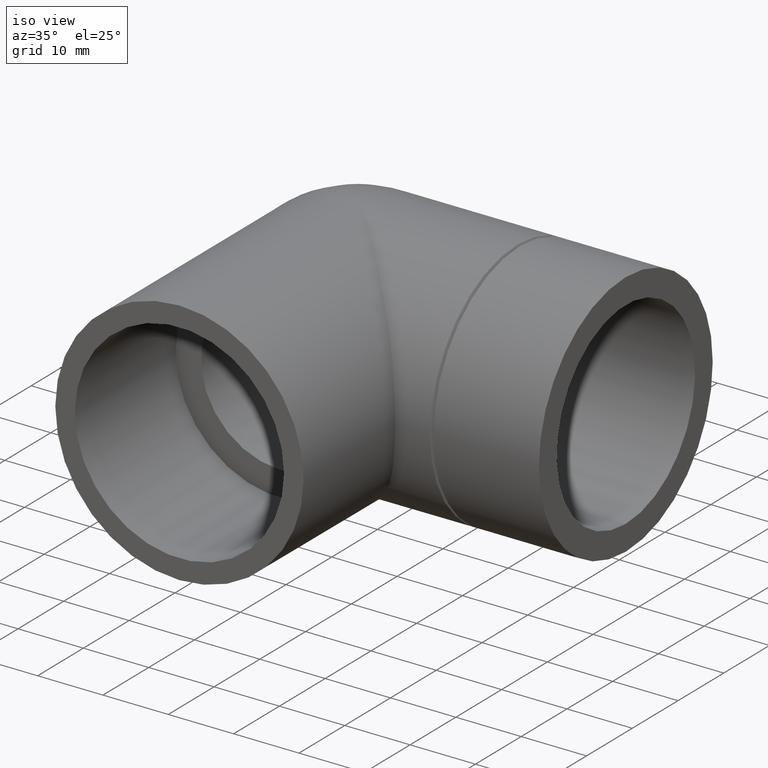
[diagram: clean part render]
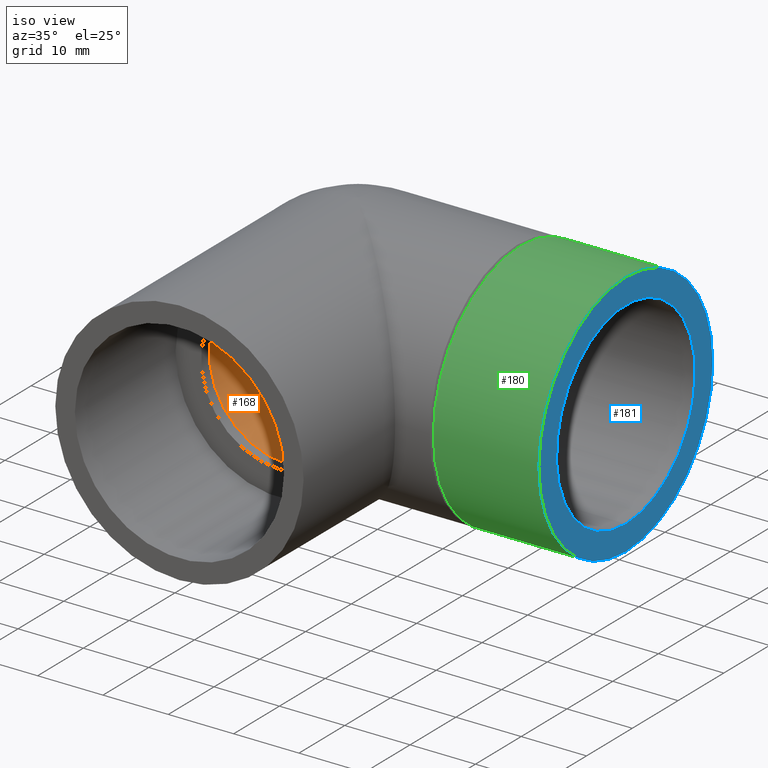
[diagram: same view with three faces highlighted in distinct colors, each labeled with its STEP entity id]
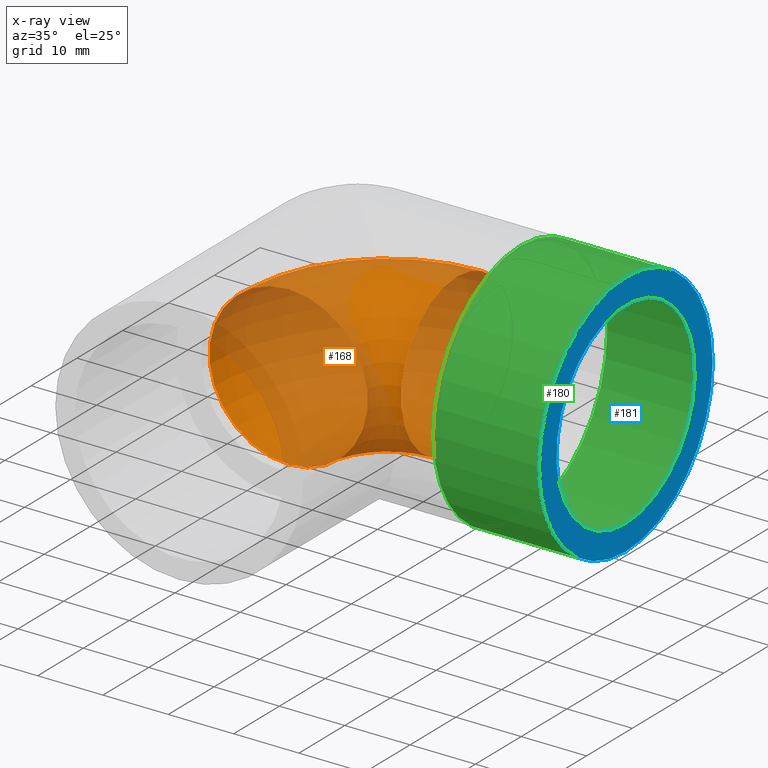
[diagram: x-ray of the same camera — body ghosted, the three highlighted faces saturated]
A machine part, iso view with three faces highlighted in distinct colors.
The next image is the same camera in x-ray (body ghosted, the three faces saturated) — at least one of them is partly hidden behind the body in this view.
Their STEP definitions:

[orange] entity #168 — the highlighted toroidal blend (fillet) surface has major radius 15.1455 mm and minor (blend) radius 12.1164 mm.
#23=TOROIDAL_SURFACE('',#187,15.1455,12.1164);
#25=FACE_BOUND('',#56,.T.);
#39=FACE_OUTER_BOUND('',#55,.T.);
#55=EDGE_LOOP('',(#130));
#56=EDGE_LOOP('',(#131));
#83=CIRCLE('',#186,12.1164);
#84=CIRCLE('',#188,12.1164);
#98=VERTEX_POINT('',#283);
#99=VERTEX_POINT('',#286);
#113=EDGE_CURVE('',#98,#98,#83,.T.);
#114=EDGE_CURVE('',#99,#99,#84,.T.);
#130=ORIENTED_EDGE('',*,*,#113,.T.);
#131=ORIENTED_EDGE('',*,*,#114,.F.);
#168=ADVANCED_FACE('',(#39,#25),#23,.F.);
#186=AXIS2_PLACEMENT_3D('',#284,#221,#222);
#187=AXIS2_PLACEMENT_3D('',#285,#223,#224);
#188=AXIS2_PLACEMENT_3D('',#287,#225,#226);
#221=DIRECTION('center_axis',(-6.12323399573677E-17,-1.,0.));
#222=DIRECTION('ref_axis',(0.,0.,1.));
#223=DIRECTION('center_axis',(0.,0.,1.));
#224=DIRECTION('ref_axis',(1.,0.,0.));
#225=DIRECTION('center_axis',(-1.,0.,0.));
#226=DIRECTION('ref_axis',(0.,0.,1.));
#283=CARTESIAN_POINT('',(-3.69695531835047E-15,-15.1455,-12.1164));
#284=CARTESIAN_POINT('Origin',(-2.21312427063158E-15,-15.1455,0.));
#285=CARTESIAN_POINT('Origin',(15.1455,-15.1455,0.));
#286=CARTESIAN_POINT('',(15.1455,1.47650926910016E-15,-12.1164));
#287=CARTESIAN_POINT('Origin',(15.1455,-7.32177861873785E-18,0.));

[blue] entity #181 — the highlighted planar face has unit normal (1, 0, 0).
#22=PLANE('',#214);
#37=FACE_BOUND('',#81,.T.);
#52=FACE_OUTER_BOUND('',#80,.T.);
#80=EDGE_LOOP('',(#158));
#81=EDGE_LOOP('',(#159));
#89=CIRCLE('',#197,15.1455);
#96=CIRCLE('',#213,19.);
#104=VERTEX_POINT('',#300);
#111=VERTEX_POINT('',#323);
#119=EDGE_CURVE('',#104,#104,#89,.T.);
#127=EDGE_CURVE('',#111,#111,#96,.T.);
#158=ORIENTED_EDGE('',*,*,#127,.T.);
#159=ORIENTED_EDGE('',*,*,#119,.T.);
#181=ADVANCED_FACE('',(#52,#37),#22,.T.);
#197=AXIS2_PLACEMENT_3D('',#301,#243,#244);
#213=AXIS2_PLACEMENT_3D('',#324,#275,#276);
#214=AXIS2_PLACEMENT_3D('',#325,#277,#278);
#243=DIRECTION('center_axis',(-1.,0.,0.));
#244=DIRECTION('ref_axis',(0.,0.,1.));
#275=DIRECTION('center_axis',(1.,0.,0.));
#276=DIRECTION('ref_axis',(0.,0.,-1.));
#277=DIRECTION('center_axis',(1.,0.,0.));
#278=DIRECTION('ref_axis',(0.,0.,-1.));
#300=CARTESIAN_POINT('',(41.,1.85478880964862E-15,-15.1455));
#301=CARTESIAN_POINT('Origin',(41.,0.,0.));
#323=CARTESIAN_POINT('',(41.,19.,0.));
#324=CARTESIAN_POINT('Origin',(41.,0.,0.));
#325=CARTESIAN_POINT('Origin',(41.,0.,0.));

[green] entity #180 — the highlighted cylindrical surface (bore or boss wall) has radius 19 mm, axis along (1, 0, 0).
#36=FACE_BOUND('',#79,.T.);
#51=FACE_OUTER_BOUND('',#78,.T.);
#78=EDGE_LOOP('',(#156));
#79=EDGE_LOOP('',(#157));
#95=CIRCLE('',#211,19.);
#96=CIRCLE('',#213,19.);
#110=VERTEX_POINT('',#320);
#111=VERTEX_POINT('',#323);
#126=EDGE_CURVE('',#110,#110,#95,.T.);
#127=EDGE_CURVE('',#111,#111,#96,.T.);
#156=ORIENTED_EDGE('',*,*,#126,.T.);
#157=ORIENTED_EDGE('',*,*,#127,.F.);
#166=CYLINDRICAL_SURFACE('',#212,19.);
#180=ADVANCED_FACE('',(#51,#36),#166,.T.);
#211=AXIS2_PLACEMENT_3D('',#321,#271,#272);
#212=AXIS2_PLACEMENT_3D('',#322,#273,#274);
#213=AXIS2_PLACEMENT_3D('',#324,#275,#276);
#271=DIRECTION('center_axis',(1.,0.,0.));
#272=DIRECTION('ref_axis',(0.,0.,-1.));
#273=DIRECTION('center_axis',(1.,0.,0.));
#274=DIRECTION('ref_axis',(0.,1.,0.));
#275=DIRECTION('center_axis',(1.,0.,0.));
#276=DIRECTION('ref_axis',(0.,0.,-1.));
#320=CARTESIAN_POINT('',(24.85,19.,0.));
#321=CARTESIAN_POINT('Origin',(24.85,0.,0.));
#322=CARTESIAN_POINT('Origin',(32.925,0.,0.));
#323=CARTESIAN_POINT('',(41.,19.,0.));
#324=CARTESIAN_POINT('Origin',(41.,0.,0.));